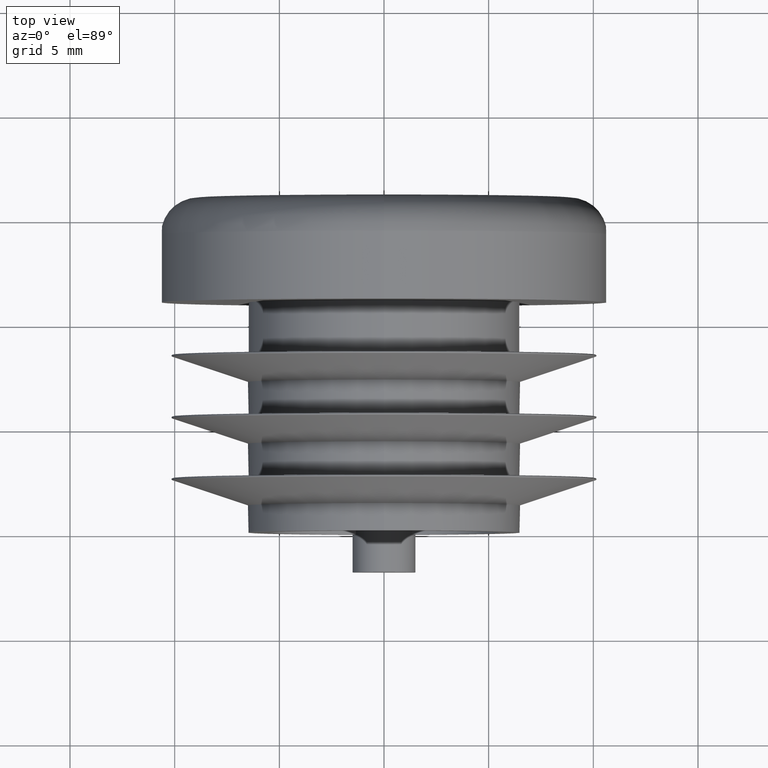
[diagram: clean part render]
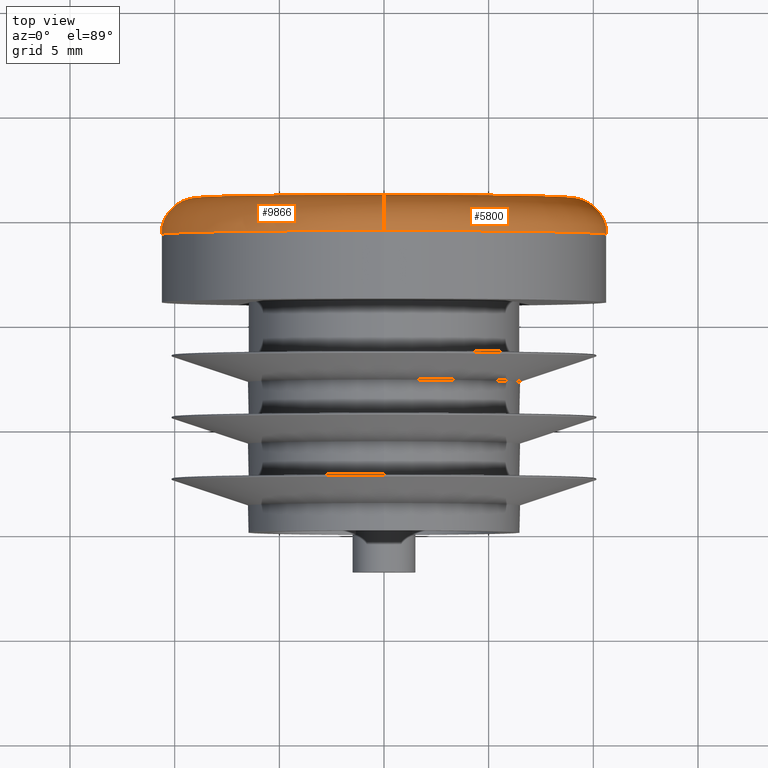
[diagram: same view with one multi-face feature highlighted, each face labeled with its STEP entity id]
A machine part, top view. The highlighted faces form ONE feature: a constant-radius fillet chain: 2 tangent blend faces with common blend radius 1.75 mm. The faces share edges in the B-rep.
Their STEP definitions:
[1] entity #9866 (Torus):
#483 = CARTESIAN_POINT ( 'NONE',  ( 0.000000000000000000, 14.25000000000000000, 0.000000000000000000 ) ) ;
#808 = CARTESIAN_POINT ( 'NONE',  ( 0.000000000000000000, 16.00000000000000000, 0.000000000000000000 ) ) ;
#912 = DIRECTION ( 'NONE',  ( 0.000000000000000000, 0.000000000000000000, 1.000000000000000000 ) ) ;
#1218 = DIRECTION ( 'NONE',  ( 1.224646799147352961E-16, 0.000000000000000000, -1.000000000000000000 ) ) ;
#1426 = VERTEX_POINT ( 'NONE', #1933 ) ;
#1528 = CARTESIAN_POINT ( 'NONE',  ( 1.197092246166537611E-15, 16.00000000000000000, -8.899999999999998579 ) ) ;
#1676 = AXIS2_PLACEMENT_3D ( 'NONE', #2248, #8519, #1218 ) ;
#1753 = CARTESIAN_POINT ( 'NONE',  ( 1.304248841091931063E-15, 14.25000000000000000, 10.64999999999999858 ) ) ;
#1933 = CARTESIAN_POINT ( 'NONE',  ( 0.000000000000000000, 14.25000000000000000, -10.64999999999999858 ) ) ;
#2248 = CARTESIAN_POINT ( 'NONE',  ( 1.089935651241144160E-15, 14.25000000000000000, -8.899999999999998579 ) ) ;
#2892 = EDGE_CURVE ( 'NONE', #6612, #1426, #3862, .T. ) ;
#3095 = DIRECTION ( 'NONE',  ( 0.000000000000000000, 1.000000000000000000, 0.000000000000000000 ) ) ;
#3199 = CARTESIAN_POINT ( 'NONE',  ( 0.000000000000000000, 14.25000000000000000, 8.899999999999998579 ) ) ;
#3862 = CIRCLE ( 'NONE', #8224, 10.64999999999999858 ) ;
#3956 = EDGE_LOOP ( 'NONE', ( #5664, #5454, #7300, #6201 ) ) ;
#4346 = EDGE_CURVE ( 'NONE', #6612, #5820, #7366, .T. ) ;
#5385 = DIRECTION ( 'NONE',  ( -0.000000000000000000, -1.000000000000000000, -0.000000000000000000 ) ) ;
#5454 = ORIENTED_EDGE ( 'NONE', *, *, #2892, .F. ) ;
#5664 = ORIENTED_EDGE ( 'NONE', *, *, #8629, .F. ) ;
#5820 = VERTEX_POINT ( 'NONE', #9631 ) ;
#6201 = ORIENTED_EDGE ( 'NONE', *, *, #6704, .F. ) ;
#6612 = VERTEX_POINT ( 'NONE', #1753 ) ;
#6704 = EDGE_CURVE ( 'NONE', #7418, #5820, #8308, .T. ) ;
#7005 = TOROIDAL_SURFACE ( 'NONE', #11470, 8.899999999999998579, 1.750000000000000000 ) ;
#7167 = CARTESIAN_POINT ( 'NONE',  ( 0.000000000000000000, 14.25000000000000000, 0.000000000000000000 ) ) ;
#7300 = ORIENTED_EDGE ( 'NONE', *, *, #4346, .T. ) ;
#7366 = CIRCLE ( 'NONE', #9113, 1.749999999999999778 ) ;
#7416 = FACE_OUTER_BOUND ( 'NONE', #3956, .T. ) ;
#7418 = VERTEX_POINT ( 'NONE', #1528 ) ;
#8224 = AXIS2_PLACEMENT_3D ( 'NONE', #7167, #5385, #912 ) ;
#8308 = CIRCLE ( 'NONE', #9426, 8.899999999999998579 ) ;
#8519 = DIRECTION ( 'NONE',  ( 1.000000000000000000, -0.000000000000000000, 1.224646799147353207E-16 ) ) ;
#8629 = EDGE_CURVE ( 'NONE', #1426, #7418, #10810, .T. ) ;
#8907 = DIRECTION ( 'NONE',  ( 0.000000000000000000, 1.000000000000000000, 0.000000000000000000 ) ) ;
#9053 = DIRECTION ( 'NONE',  ( 0.000000000000000000, 0.000000000000000000, 1.000000000000000000 ) ) ;
#9113 = AXIS2_PLACEMENT_3D ( 'NONE', #3199, #10261, #10342 ) ;
#9355 = DIRECTION ( 'NONE',  ( 0.000000000000000000, 0.000000000000000000, 1.000000000000000000 ) ) ;
#9426 = AXIS2_PLACEMENT_3D ( 'NONE', #808, #8907, #9053 ) ;
#9631 = CARTESIAN_POINT ( 'NONE',  ( 0.000000000000000000, 16.00000000000000000, 8.899999999999998579 ) ) ;
#9866 = ADVANCED_FACE ( 'NONE', ( #7416 ), #7005, .T. ) ;
#10261 = DIRECTION ( 'NONE',  ( -1.000000000000000000, 0.000000000000000000, 0.000000000000000000 ) ) ;
#10342 = DIRECTION ( 'NONE',  ( 0.000000000000000000, 0.000000000000000000, 1.000000000000000000 ) ) ;
#10810 = CIRCLE ( 'NONE', #1676, 1.749999999999999778 ) ;
#11470 = AXIS2_PLACEMENT_3D ( 'NONE', #483, #3095, #9355 ) ;
[2] entity #5800 (Torus):
#185 = EDGE_CURVE ( 'NONE', #1426, #6612, #1390, .T. ) ;
#394 = DIRECTION ( 'NONE',  ( -0.000000000000000000, -1.000000000000000000, -0.000000000000000000 ) ) ;
#514 = CARTESIAN_POINT ( 'NONE',  ( 0.000000000000000000, 14.25000000000000000, 0.000000000000000000 ) ) ;
#1133 = DIRECTION ( 'NONE',  ( 0.000000000000000000, 1.000000000000000000, 0.000000000000000000 ) ) ;
#1218 = DIRECTION ( 'NONE',  ( 1.224646799147352961E-16, 0.000000000000000000, -1.000000000000000000 ) ) ;
#1390 = CIRCLE ( 'NONE', #7965, 10.64999999999999858 ) ;
#1426 = VERTEX_POINT ( 'NONE', #1933 ) ;
#1528 = CARTESIAN_POINT ( 'NONE',  ( 1.197092246166537611E-15, 16.00000000000000000, -8.899999999999998579 ) ) ;
#1597 = AXIS2_PLACEMENT_3D ( 'NONE', #8662, #11344, #5087 ) ;
#1676 = AXIS2_PLACEMENT_3D ( 'NONE', #2248, #8519, #1218 ) ;
#1753 = CARTESIAN_POINT ( 'NONE',  ( 1.304248841091931063E-15, 14.25000000000000000, 10.64999999999999858 ) ) ;
#1933 = CARTESIAN_POINT ( 'NONE',  ( 0.000000000000000000, 14.25000000000000000, -10.64999999999999858 ) ) ;
#2127 = DIRECTION ( 'NONE',  ( 0.000000000000000000, 0.000000000000000000, 1.000000000000000000 ) ) ;
#2248 = CARTESIAN_POINT ( 'NONE',  ( 1.089935651241144160E-15, 14.25000000000000000, -8.899999999999998579 ) ) ;
#3199 = CARTESIAN_POINT ( 'NONE',  ( 0.000000000000000000, 14.25000000000000000, 8.899999999999998579 ) ) ;
#3655 = CIRCLE ( 'NONE', #9575, 8.899999999999998579 ) ;
#4346 = EDGE_CURVE ( 'NONE', #6612, #5820, #7366, .T. ) ;
#4407 = EDGE_LOOP ( 'NONE', ( #7145, #8873, #7515, #7242 ) ) ;
#4946 = TOROIDAL_SURFACE ( 'NONE', #1597, 8.899999999999998579, 1.750000000000000000 ) ;
#5087 = DIRECTION ( 'NONE',  ( 0.000000000000000000, 0.000000000000000000, 1.000000000000000000 ) ) ;
#5645 = CARTESIAN_POINT ( 'NONE',  ( 0.000000000000000000, 16.00000000000000000, 0.000000000000000000 ) ) ;
#5800 = ADVANCED_FACE ( 'NONE', ( #11274 ), #4946, .T. ) ;
#5820 = VERTEX_POINT ( 'NONE', #9631 ) ;
#6612 = VERTEX_POINT ( 'NONE', #1753 ) ;
#7145 = ORIENTED_EDGE ( 'NONE', *, *, #185, .F. ) ;
#7242 = ORIENTED_EDGE ( 'NONE', *, *, #4346, .F. ) ;
#7366 = CIRCLE ( 'NONE', #9113, 1.749999999999999778 ) ;
#7418 = VERTEX_POINT ( 'NONE', #1528 ) ;
#7515 = ORIENTED_EDGE ( 'NONE', *, *, #7745, .F. ) ;
#7745 = EDGE_CURVE ( 'NONE', #5820, #7418, #3655, .T. ) ;
#7965 = AXIS2_PLACEMENT_3D ( 'NONE', #514, #394, #2127 ) ;
#8519 = DIRECTION ( 'NONE',  ( 1.000000000000000000, -0.000000000000000000, 1.224646799147353207E-16 ) ) ;
#8629 = EDGE_CURVE ( 'NONE', #1426, #7418, #10810, .T. ) ;
#8662 = CARTESIAN_POINT ( 'NONE',  ( 0.000000000000000000, 14.25000000000000000, 0.000000000000000000 ) ) ;
#8873 = ORIENTED_EDGE ( 'NONE', *, *, #8629, .T. ) ;
#9113 = AXIS2_PLACEMENT_3D ( 'NONE', #3199, #10261, #10342 ) ;
#9412 = DIRECTION ( 'NONE',  ( 0.000000000000000000, 0.000000000000000000, 1.000000000000000000 ) ) ;
#9575 = AXIS2_PLACEMENT_3D ( 'NONE', #5645, #1133, #9412 ) ;
#9631 = CARTESIAN_POINT ( 'NONE',  ( 0.000000000000000000, 16.00000000000000000, 8.899999999999998579 ) ) ;
#10261 = DIRECTION ( 'NONE',  ( -1.000000000000000000, 0.000000000000000000, 0.000000000000000000 ) ) ;
#10342 = DIRECTION ( 'NONE',  ( 0.000000000000000000, 0.000000000000000000, 1.000000000000000000 ) ) ;
#10810 = CIRCLE ( 'NONE', #1676, 1.749999999999999778 ) ;
#11274 = FACE_OUTER_BOUND ( 'NONE', #4407, .T. ) ;
#11344 = DIRECTION ( 'NONE',  ( 0.000000000000000000, 1.000000000000000000, 0.000000000000000000 ) ) ;